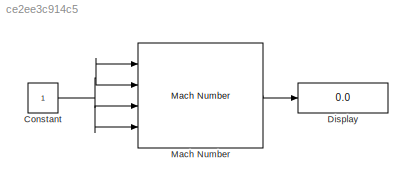
MODEL slx_ce2ee3c914c5
KIND model
BLOCK [Constant] Constant
BLOCK [Display] Display
  Decimation = 1
  Ports = [1]
BLOCK [Reference] Mach Number  REF=rocket_drag_library/Mach Number  (lib defined in slx_51275aa4cfd2)
  Ports = [4, 1]
  SourceBlock = rocket_drag_library/Mach Number
  SourceType = SubSystem
NET Constant:1 -> Mach Number:1, Mach Number:2, Mach Number:3, Mach Number:4
LINE Mach Number:1 -> Display:1
note: NET lines group one-source signal fan-out (src -> all destinations, sorted); 1:1 wires keep LINE
